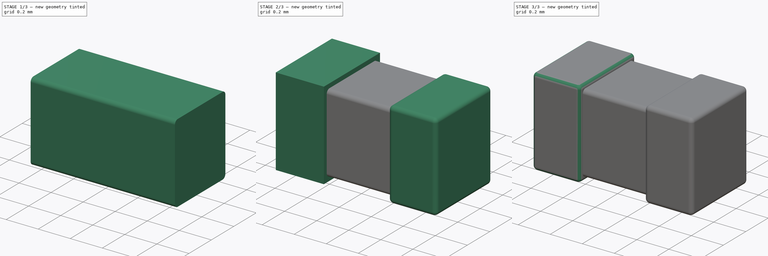
[diagram: build sequence overview — one tinted view per stage of 3, left to right]
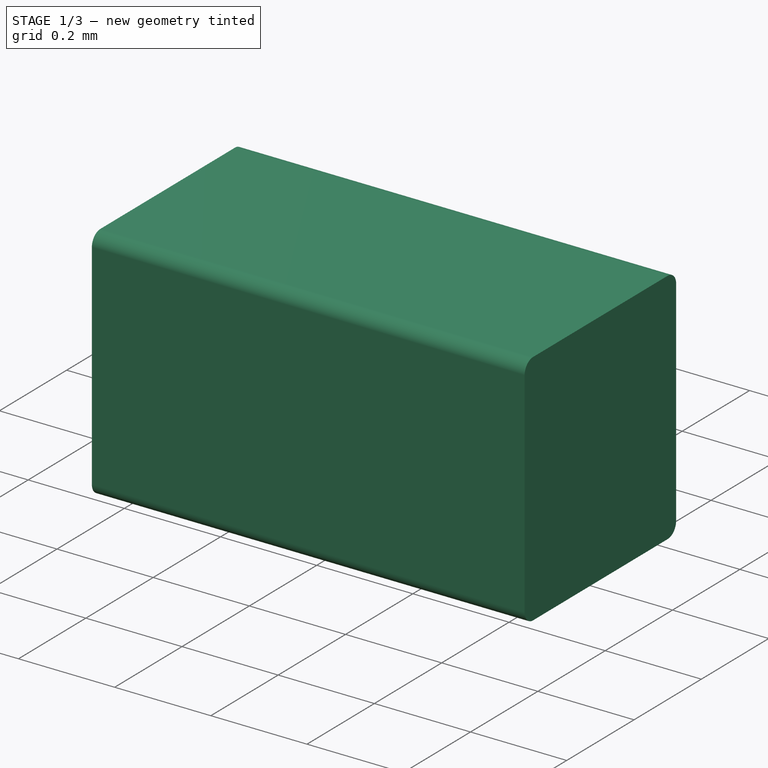
[diagram: stage 1 of 3 — iso view after this stage's code; geometry added in this stage tinted green]
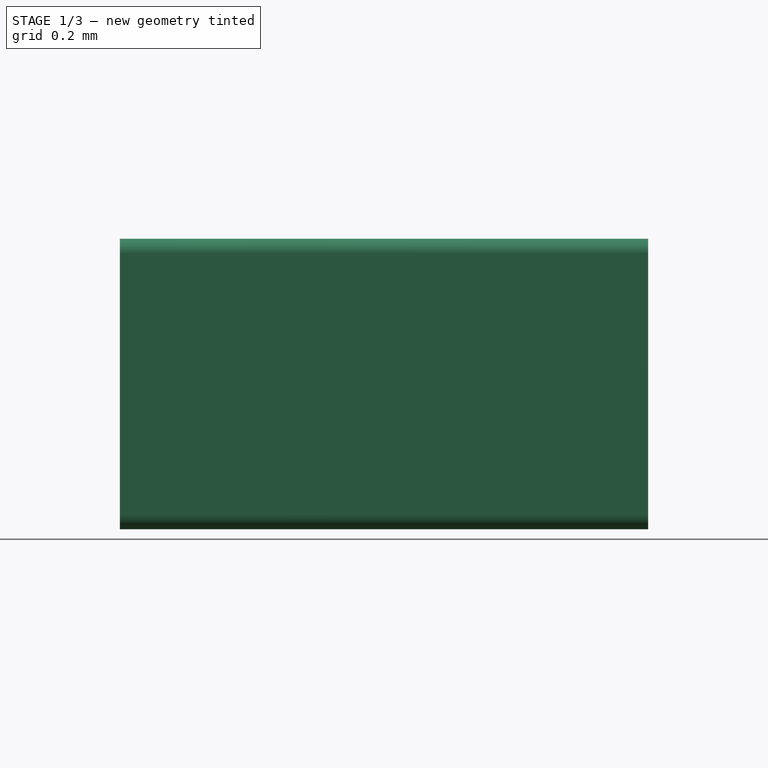
[diagram: stage 1 of 3 — front view after this stage's code; geometry added in this stage tinted green]
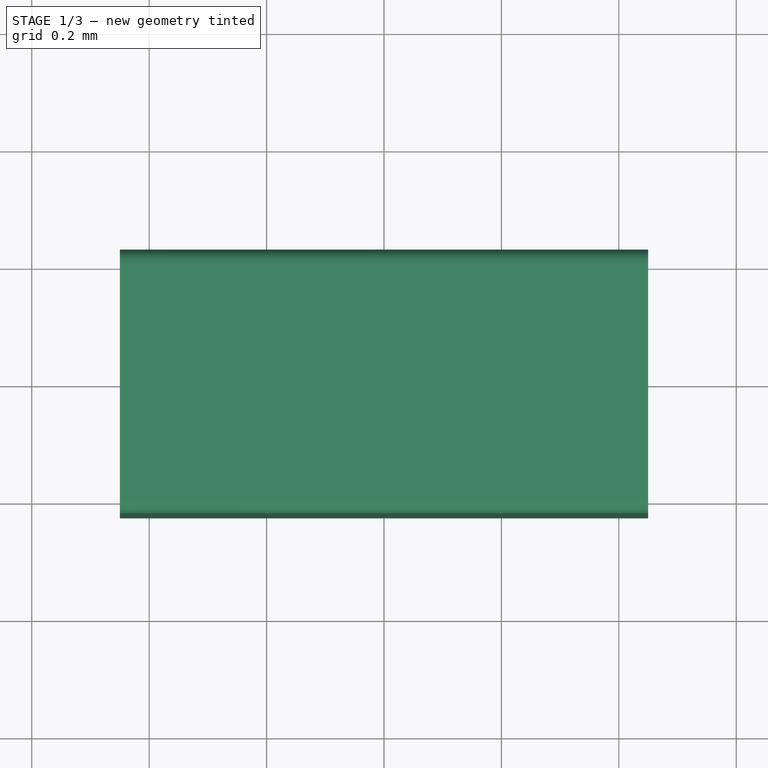
[diagram: stage 1 of 3 — top view after this stage's code; geometry added in this stage tinted green]
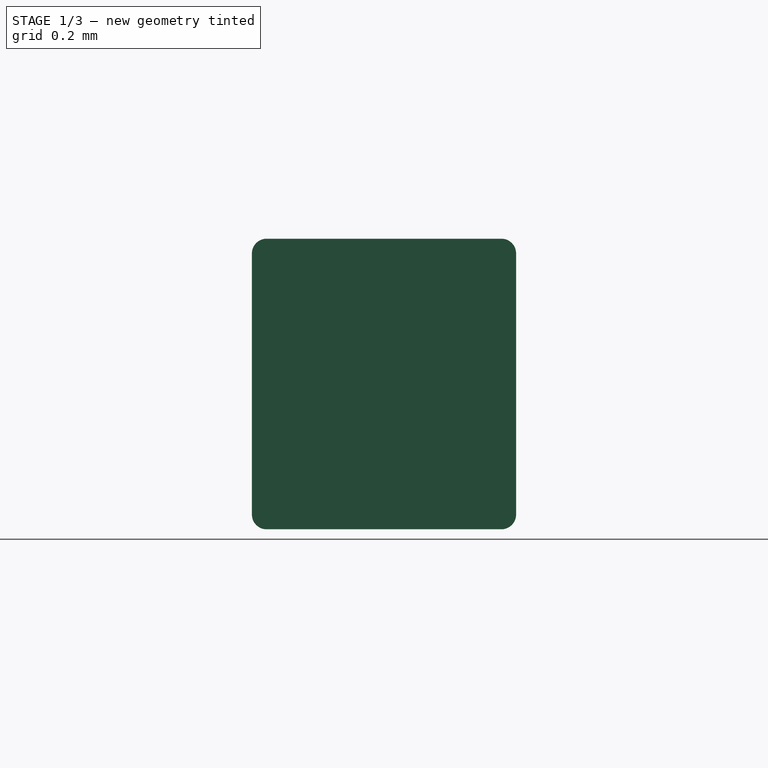
[diagram: stage 1 of 3 — right view after this stage's code; geometry added in this stage tinted green]
FCSTD DOCUMENT  (FreeCAD 0.19R17069 (Git))
Label: Kemet Chip Capacitors 0402
License: All rights reserved
LicenseURL: http://en.wikipedia.org/wiki/All_rights_reserved
objects: Sketcher::SketchObject×3, PartDesign::Pad×3, PartDesign::Fillet×3, PartDesign::Body×3, Spreadsheet::Sheet×1, Part::MultiFuse×1
note: 16 computed .brp shape members not serialized (recipe doc carries the construction recipe); baked Part::Feature solids carry a one-line shape summary decoded from their .brp

FEATURE [Spreadsheet::Sheet] Spreadsheet
  cells = C1=eai 0402; A3=length; B3=datasheet; C3(length)==1mm; A4=width; B4=datasheet; C4(width)==0.5mm; A5=thickness; B5=datasheet: 0.50, 0.55; C5(thickness)==0.55mm; A6=bandwidth; B6=datasheet; C6(bandwidth)==0.3mm; A7=separation; B7=datasheet, minimum; C7==0.3mm; A9=fl; B9=shrink factor length; C9(fl)=0.9; A10=fw; B10=shrink factor width; C10(fw)=0.9; A11=fth; B11=shrink factor thickness; C11(fth)=0.9; A12=filletbody; C12(filletbody)==0.025mm; A13=filletleads; C13(filletleads)==0.025mm
FEATURE [Sketcher::SketchObject] Sketch
  AttachmentOffset = pos=(0,0,0.0275) rot=(0,0,1;0rad)
  MapMode = 5
  Placement = pos=(0,0,0.0275) rot=(0,0,1;0rad)
  Support = -> [XY_Plane]
  expr: AttachmentOffset.Base.z = (Spreadsheet.thickness - Spreadsheet.thickness * Spreadsheet.fth) / 2
  expr: Constraints[10] = Spreadsheet.width * Spreadsheet.fw
  expr: Constraints[9] = Spreadsheet.length * Spreadsheet.fl
  sketch-geometry (4):
    g0: LineSegment StartX=-0.45 StartY=-0.225 StartZ=0 EndX=0.45 EndY=-0.225 EndZ=0
    g1: LineSegment StartX=0.45 StartY=-0.225 StartZ=0 EndX=0.45 EndY=0.225 EndZ=0
    g2: LineSegment StartX=0.45 StartY=0.225 StartZ=0 EndX=-0.45 EndY=0.225 EndZ=0
    g3: LineSegment StartX=-0.45 StartY=0.225 StartZ=0 EndX=-0.45 EndY=-0.225 EndZ=0
  constraints (11):
    c: Coincident(g0,g1)
    c: Coincident(g1,g2)
    c: Coincident(g2,g3)
    c: Coincident(g3,g0)
    c: Horizontal(g0)
    c: Horizontal(g2)
    c: Vertical(g1)
    c: Vertical(g3)
    c: Symmetric(g0,g1,g-1)
    c: DistanceX(g2,g2) = 0.9
    c: DistanceY(g1,g1) = 0.45
FEATURE [PartDesign::Pad] Pad
  Length = 0.495
  Length2 = 100
  Profile = -> Sketch
  Type = 0
  expr: Length = Spreadsheet.thickness * Spreadsheet.fth
FEATURE [PartDesign::Body] Body002
  Group = -> [Sketch002,Pad002,Fillet001]
  Origin = -> Origin002
  Tip = -> Fillet001
FEATURE [PartDesign::Fillet] Fillet002
  Base = -> Pad [Edge4,Edge10,Edge3,Edge9]
  BaseFeature = -> Pad
  Radius = 0.025
  expr: Radius = Spreadsheet.filletbody
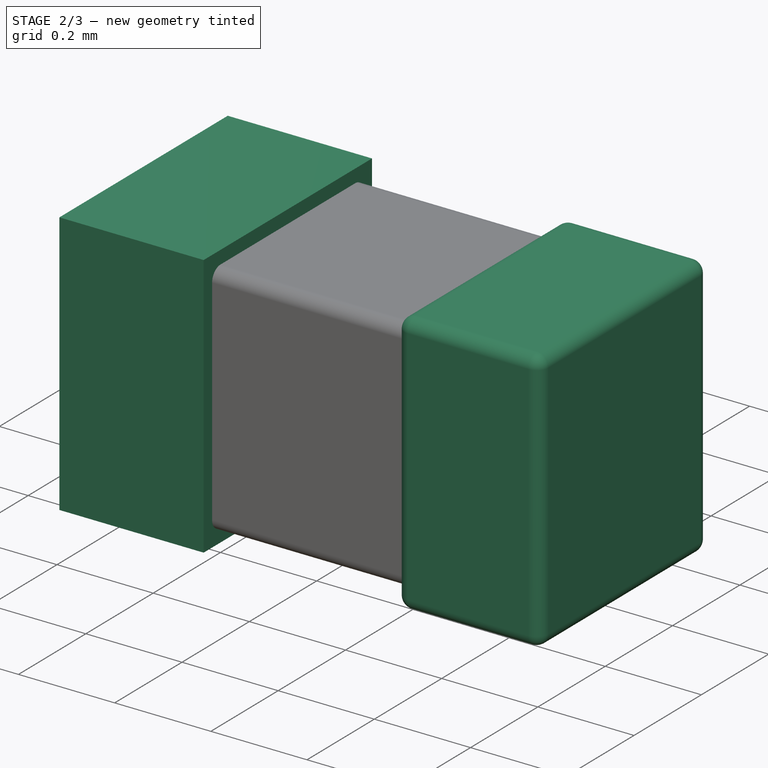
[diagram: stage 2 of 3 — iso view after this stage's code; geometry added in this stage tinted green]
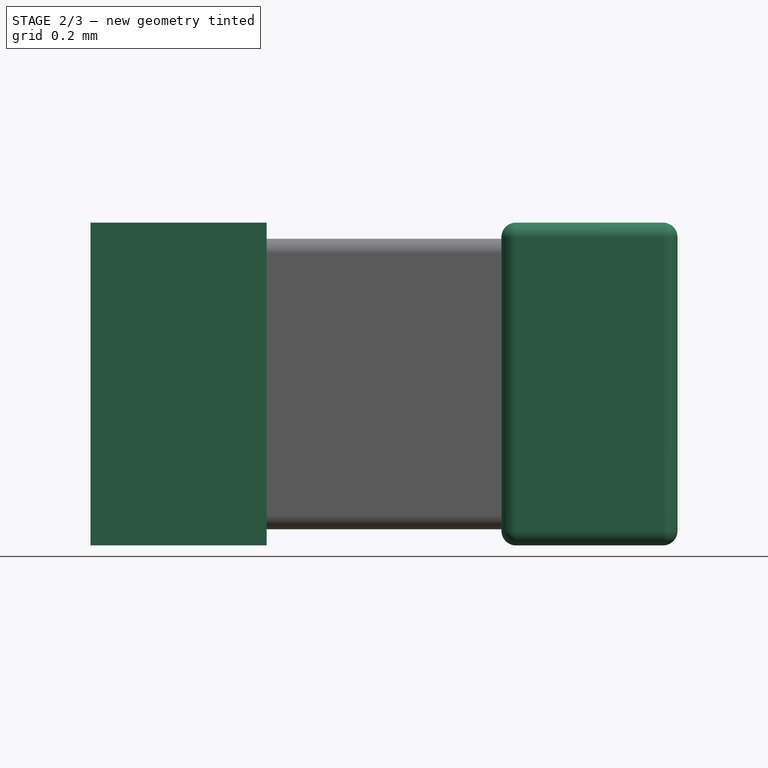
[diagram: stage 2 of 3 — front view after this stage's code; geometry added in this stage tinted green]
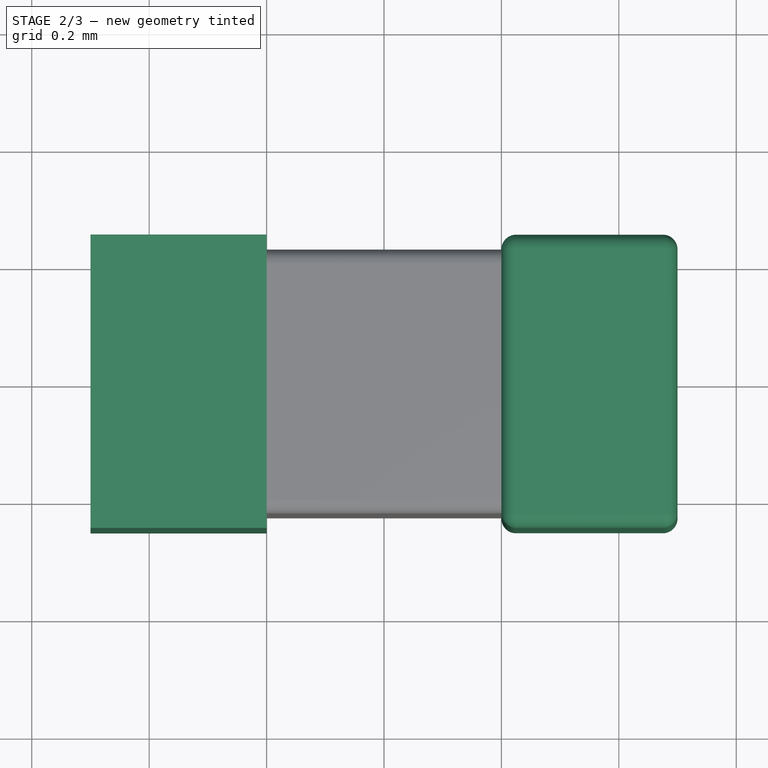
[diagram: stage 2 of 3 — top view after this stage's code; geometry added in this stage tinted green]
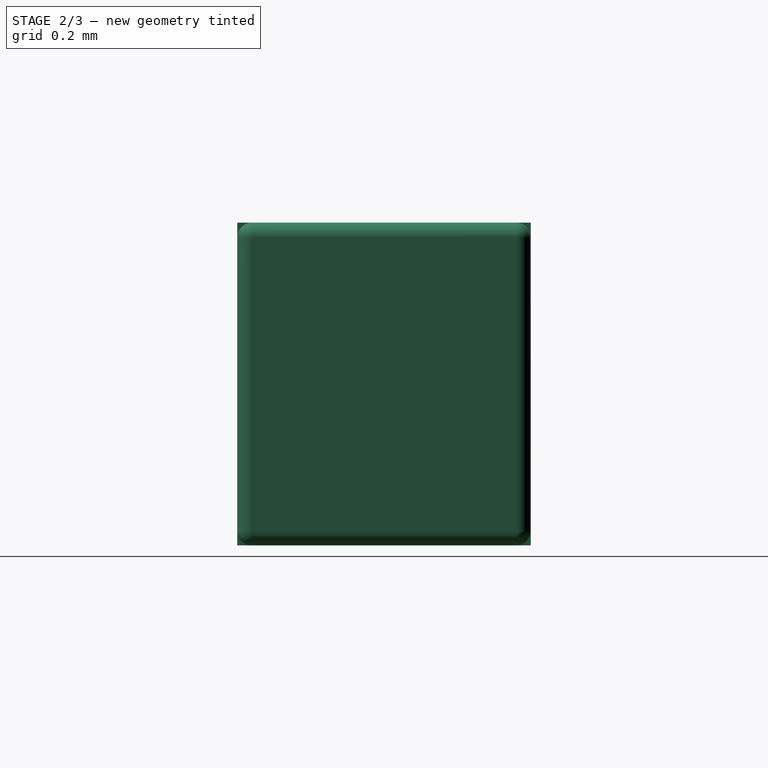
[diagram: stage 2 of 3 — right view after this stage's code; geometry added in this stage tinted green]
FEATURE [Sketcher::SketchObject] Sketch001
  MapMode = 5
  Placement = pos=(0,0,0) rot=(1,0,0;1.5708rad)
  Support = -> [XZ_Plane001]
  expr: Constraints[12] = Spreadsheet.thickness
  expr: Constraints[10] = Spreadsheet.length / 2
  expr: Constraints[9] = Spreadsheet.bandwidth
  sketch-geometry (4):
    g0: LineSegment StartX=-0.5 StartY=0 StartZ=0 EndX=-0.2 EndY=0 EndZ=0
    g1: LineSegment StartX=-0.2 StartY=0 StartZ=0 EndX=-0.2 EndY=0.55 EndZ=0
    g2: LineSegment StartX=-0.2 StartY=0.55 StartZ=0 EndX=-0.5 EndY=0.55 EndZ=0
    g3: LineSegment StartX=-0.5 StartY=0.55 StartZ=0 EndX=-0.5 EndY=0 EndZ=0
  constraints (13):
    c: Coincident(g0,g1)
    c: Coincident(g1,g2)
    c: Horizontal(g0)
    c: Horizontal(g2)
    c: Vertical(g1)
    c: PointOnObject(g0,g-1)
    c: Coincident(g3,g2)
    c: Coincident(g3,g0)
    c: Vertical(g3)
    c: DistanceX(g2,g2) = 0.3
    c: DistanceX(g2,g-1) = 0.5
    c: DistanceX(g1,g-1) = 0.2
    c: DistanceY(g3,g3) = 0.55
FEATURE [PartDesign::Pad] Pad001
  Length = 0.5
  Length2 = 100
  Midplane = true
  Placement = pos=(0,0,0) rot=(1,0,0;1.5708rad)
  Profile = -> Sketch001
  Type = 0
  expr: Length = Spreadsheet.width
FEATURE [Sketcher::SketchObject] Sketch002
  MapMode = 5
  Placement = pos=(0,0,0) rot=(1,0,0;1.5708rad)
  Support = -> [XZ_Plane002]
  expr: Constraints[11] = Spreadsheet.length / 2
  expr: Constraints[10] = Spreadsheet.thickness
  expr: Constraints[9] = Spreadsheet.bandwidth
  sketch-geometry (4):
    g0: LineSegment StartX=0.2 StartY=0 StartZ=0 EndX=0.5 EndY=0 EndZ=0
    g1: LineSegment StartX=0.5 StartY=0 StartZ=0 EndX=0.5 EndY=0.55 EndZ=0
    g2: LineSegment StartX=0.5 StartY=0.55 StartZ=0 EndX=0.2 EndY=0.55 EndZ=0
    g3: LineSegment StartX=0.2 StartY=0.55 StartZ=0 EndX=0.2 EndY=0 EndZ=0
  constraints (13):
    c: Coincident(g0,g1)
    c: Coincident(g1,g2)
    c: Horizontal(g0)
    c: Horizontal(g2)
    c: Vertical(g1)
    c: PointOnObject(g0,g-1)
    c: Coincident(g3,g2)
    c: Coincident(g3,g0)
    c: Vertical(g3)
    c: DistanceX(g2,g2) = 0.3
    c: DistanceY(g3,g3) = 0.55
    c: DistanceX(g-1,g0) = 0.5
    c: DistanceX(g-1,g2) = 0.2
FEATURE [PartDesign::Pad] Pad002
  Length = 0.5
  Length2 = 100
  Midplane = true
  Placement = pos=(0,0,0) rot=(1,0,0;1.5708rad)
  Profile = -> Sketch002
  Type = 0
  expr: Length = Spreadsheet.width
FEATURE [PartDesign::Body] Body001
  Group = -> [Sketch001,Pad001,Fillet]
  Origin = -> Origin001
  Tip = -> Fillet
FEATURE [PartDesign::Fillet] Fillet001
  Base = -> Pad002 [Edge2,Edge6,Edge7,Edge5,Edge10,Edge9,Edge8,Edge12,Edge4,Edge1,Edge11,Edge3]
  BaseFeature = -> Pad002
  Placement = pos=(0,0,0) rot=(1,0,0;1.5708rad)
  Radius = 0.025
  expr: Radius = Spreadsheet.filletleads
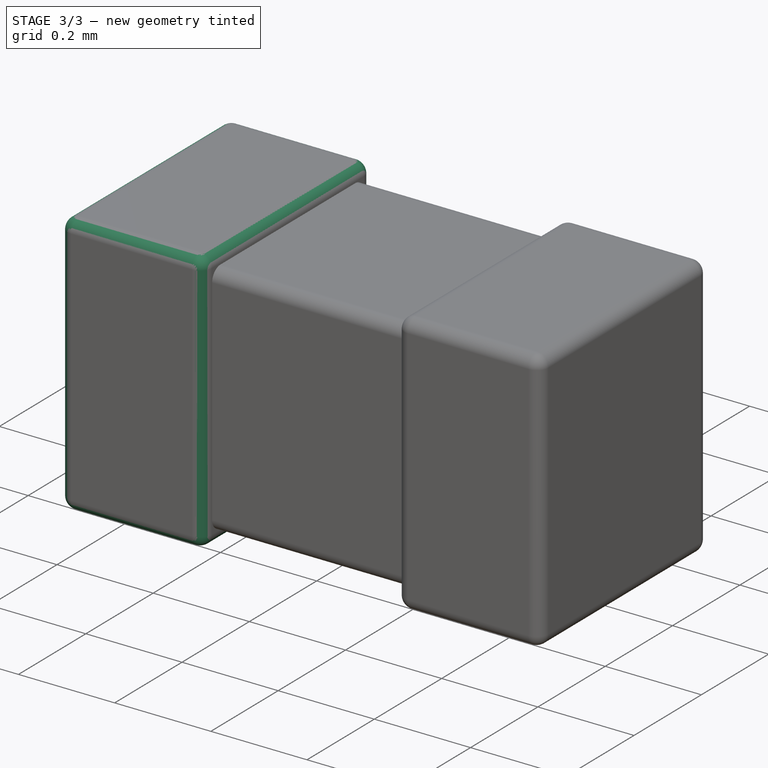
[diagram: stage 3 of 3 — iso view after this stage's code; geometry added in this stage tinted green]
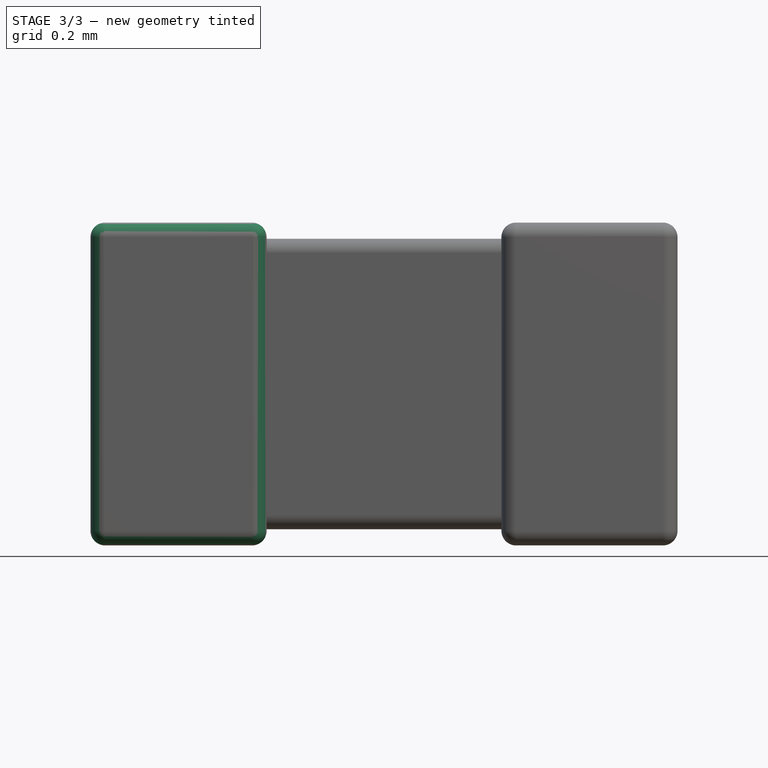
[diagram: stage 3 of 3 — front view after this stage's code; geometry added in this stage tinted green]
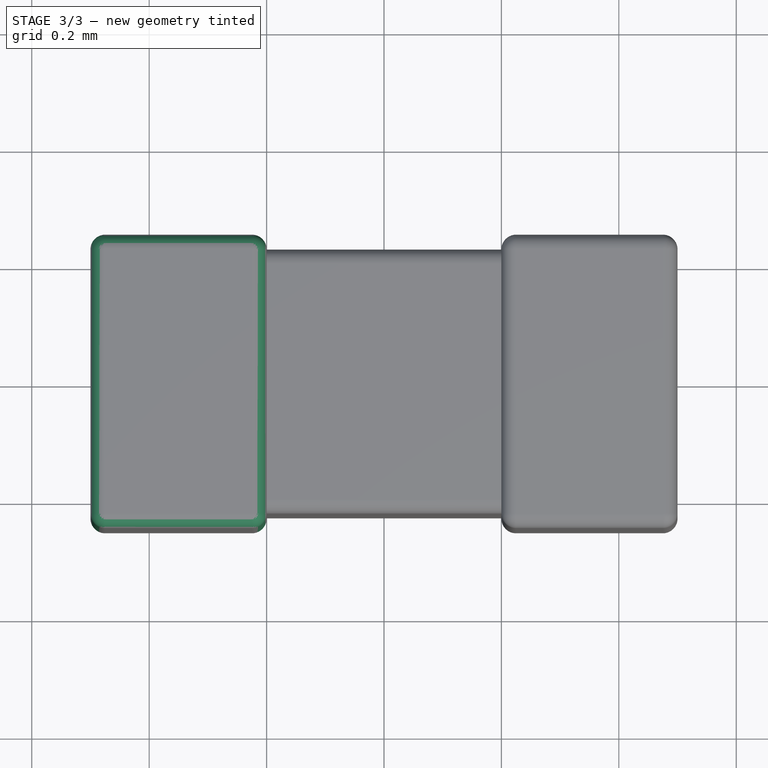
[diagram: stage 3 of 3 — top view after this stage's code; geometry added in this stage tinted green]
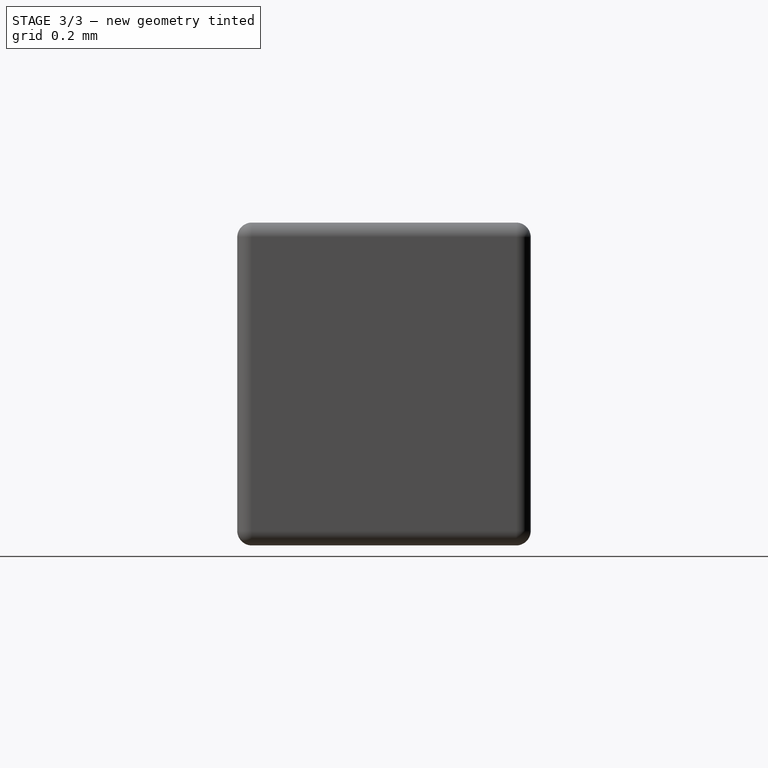
[diagram: stage 3 of 3 — right view after this stage's code; geometry added in this stage tinted green]
FEATURE [PartDesign::Fillet] Fillet
  Base = -> Pad001 [Edge8,Edge11,Edge9,Edge6,Edge3,Edge2,Edge1,Edge12,Edge4,Edge7,Edge10,Edge5]
  BaseFeature = -> Pad001
  Placement = pos=(0,0,0) rot=(1,0,0;1.5708rad)
  Radius = 0.025
  expr: Radius = Spreadsheet.filletleads
FEATURE [PartDesign::Body] Body
  Group = -> [Sketch,Pad,Fillet002]
  Origin = -> Origin
  Tip = -> Fillet002
FEATURE [Part::MultiFuse] Fusion  label="C_0402_1005M_h0.55"
  Shapes = -> [Body,Body002,Body001]
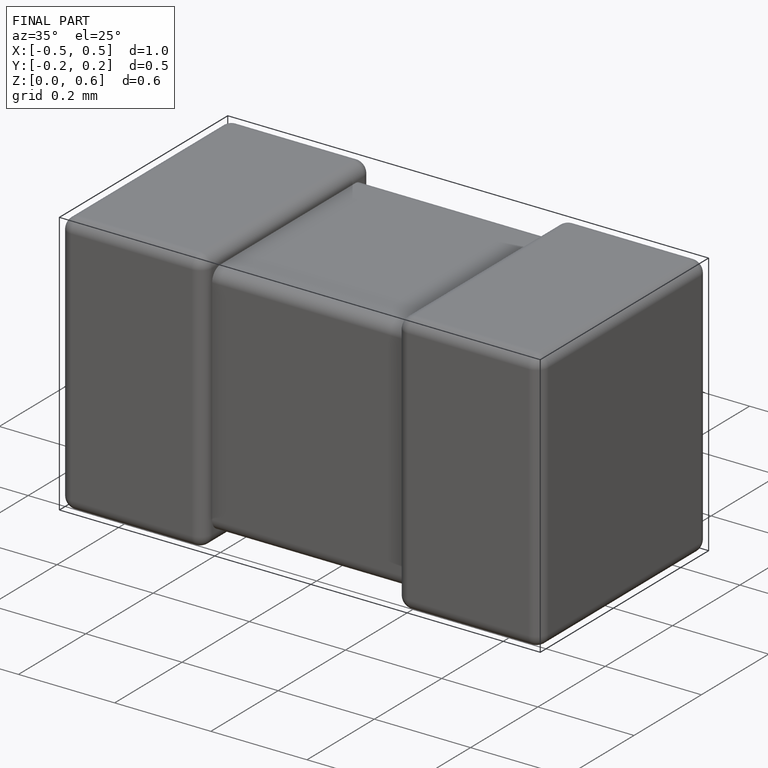
[diagram: finished part — iso view with bounding-box wireframe]
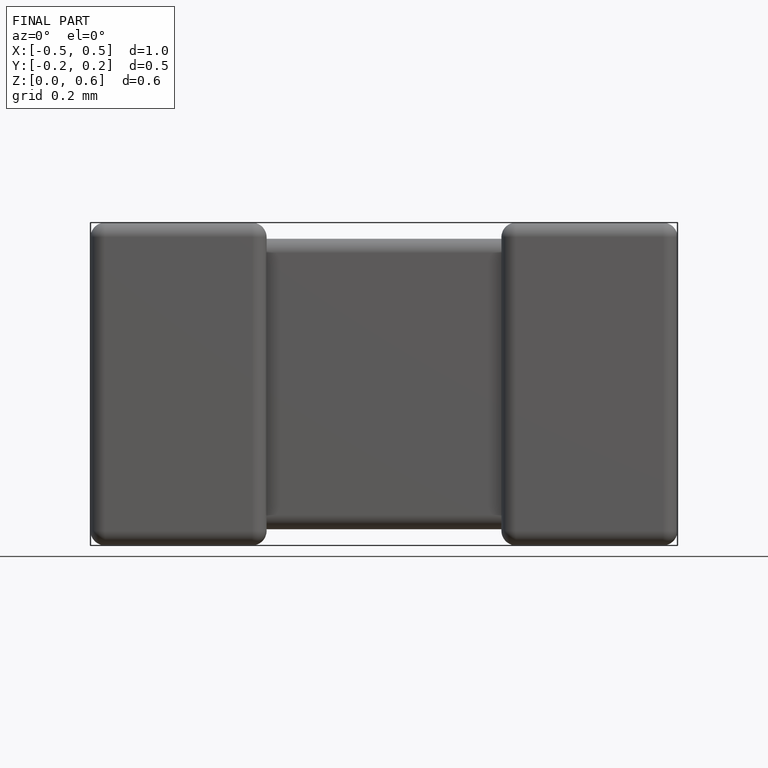
[diagram: finished part — front view with bounding-box wireframe]
